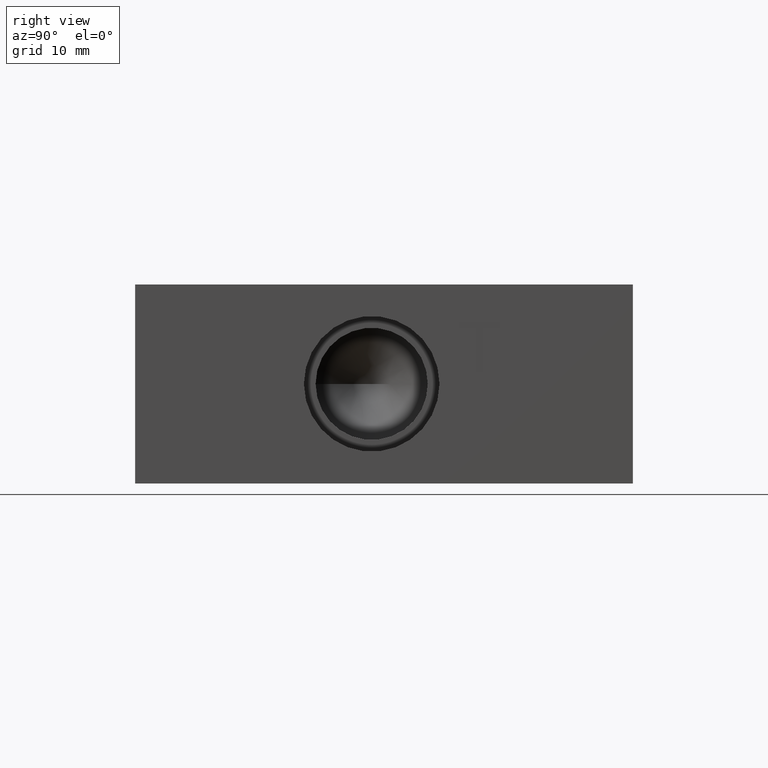
[diagram: clean part render]
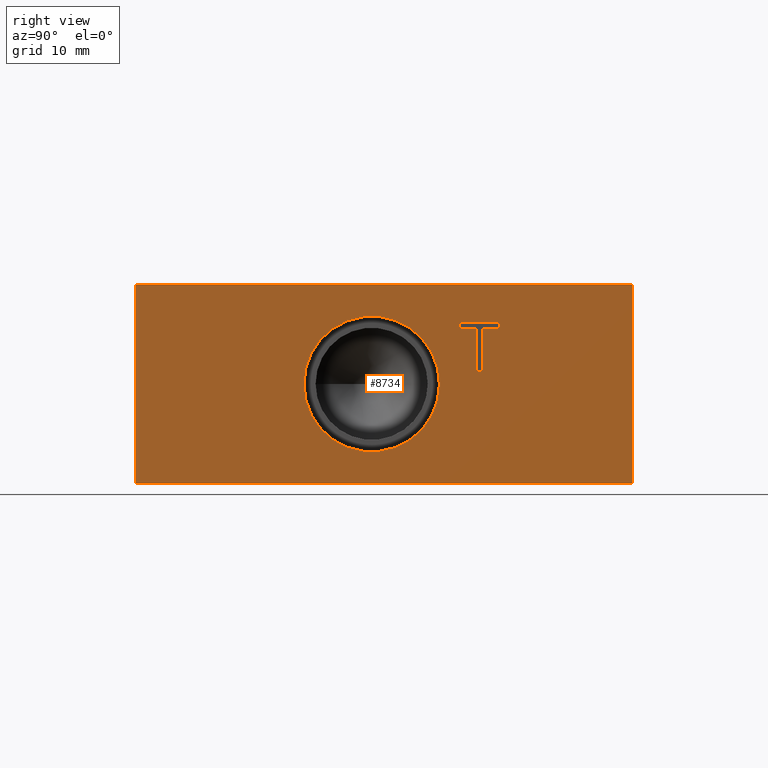
[diagram: same view with one face highlighted and labeled with its STEP entity id]
A machine part, right view. The second image highlights one B-rep face of the part: STEP entity #8734.
In plain terms, the highlighted planar face has unit normal (1, 0, 0).
Its self-contained STEP definition (entity closure, byte-faithful):
#80=CIRCLE('',#9045,8.6487);
#81=CIRCLE('',#9046,8.6487);
#186=FACE_BOUND('',#1396,.T.);
#187=FACE_BOUND('',#1397,.T.);
#465=PLANE('',#9142);
#907=FACE_OUTER_BOUND('',#1395,.T.);
#1395=EDGE_LOOP('',(#7730,#7731,#7732,#7733));
#1396=EDGE_LOOP('',(#7734,#7735,#7736,#7737,#7738,#7739,#7740,#7741));
#1397=EDGE_LOOP('',(#7742,#7743));
#1500=LINE('',#11686,#2340);
#2114=LINE('',#14319,#2954);
#2118=LINE('',#14327,#2958);
#2121=LINE('',#14333,#2961);
#2124=LINE('',#14339,#2964);
#2127=LINE('',#14345,#2967);
#2130=LINE('',#14351,#2970);
#2133=LINE('',#14357,#2973);
#2136=LINE('',#14362,#2976);
#2173=LINE('',#14437,#3013);
#2252=LINE('',#14999,#3092);
#2253=LINE('',#15000,#3093);
#2340=VECTOR('',#9270,10.);
#2954=VECTOR('',#10292,10.);
#2958=VECTOR('',#10298,10.);
#2961=VECTOR('',#10303,10.);
#2964=VECTOR('',#10308,10.);
#2967=VECTOR('',#10313,10.);
#2970=VECTOR('',#10318,10.);
#2973=VECTOR('',#10323,10.);
#2976=VECTOR('',#10328,10.);
#3013=VECTOR('',#10393,10.);
#3092=VECTOR('',#10768,10.);
#3093=VECTOR('',#10769,10.);
#3481=VERTEX_POINT('',#11683);
#3482=VERTEX_POINT('',#11685);
#4008=VERTEX_POINT('',#14317);
#4009=VERTEX_POINT('',#14318);
#4012=VERTEX_POINT('',#14326);
#4014=VERTEX_POINT('',#14332);
#4016=VERTEX_POINT('',#14338);
#4018=VERTEX_POINT('',#14344);
#4020=VERTEX_POINT('',#14350);
#4022=VERTEX_POINT('',#14356);
#4046=VERTEX_POINT('',#14433);
#4047=VERTEX_POINT('',#14435);
#4112=VERTEX_POINT('',#14800);
#4113=VERTEX_POINT('',#14801);
#4355=EDGE_CURVE('',#3481,#3482,#1500,.T.);
#5137=EDGE_CURVE('',#4008,#4009,#2114,.T.);
#5141=EDGE_CURVE('',#4012,#4008,#2118,.T.);
#5144=EDGE_CURVE('',#4014,#4012,#2121,.T.);
#5147=EDGE_CURVE('',#4016,#4014,#2124,.T.);
#5150=EDGE_CURVE('',#4018,#4016,#2127,.T.);
#5153=EDGE_CURVE('',#4020,#4018,#2130,.T.);
#5156=EDGE_CURVE('',#4022,#4020,#2133,.T.);
#5159=EDGE_CURVE('',#4009,#4022,#2136,.T.);
#5196=EDGE_CURVE('',#4046,#4047,#2173,.T.);
#5291=EDGE_CURVE('',#4112,#4113,#80,.T.);
#5292=EDGE_CURVE('',#4113,#4112,#81,.T.);
#5381=EDGE_CURVE('',#3481,#4046,#2252,.T.);
#5382=EDGE_CURVE('',#3482,#4047,#2253,.T.);
#7730=ORIENTED_EDGE('',*,*,#5381,.T.);
#7731=ORIENTED_EDGE('',*,*,#5196,.T.);
#7732=ORIENTED_EDGE('',*,*,#5382,.F.);
#7733=ORIENTED_EDGE('',*,*,#4355,.F.);
#7734=ORIENTED_EDGE('',*,*,#5137,.T.);
#7735=ORIENTED_EDGE('',*,*,#5159,.T.);
#7736=ORIENTED_EDGE('',*,*,#5156,.T.);
#7737=ORIENTED_EDGE('',*,*,#5153,.T.);
#7738=ORIENTED_EDGE('',*,*,#5150,.T.);
#7739=ORIENTED_EDGE('',*,*,#5147,.T.);
#7740=ORIENTED_EDGE('',*,*,#5144,.T.);
#7741=ORIENTED_EDGE('',*,*,#5141,.T.);
#7742=ORIENTED_EDGE('',*,*,#5291,.T.);
#7743=ORIENTED_EDGE('',*,*,#5292,.T.);
#8734=ADVANCED_FACE('',(#907,#186,#187),#465,.T.);
#9045=AXIS2_PLACEMENT_3D('',#14802,#10542,#10543);
#9046=AXIS2_PLACEMENT_3D('',#14803,#10544,#10545);
#9142=AXIS2_PLACEMENT_3D('',#14998,#10766,#10767);
#9270=DIRECTION('',(0.,0.,1.));
#10292=DIRECTION('',(0.,-1.,0.));
#10298=DIRECTION('',(0.,0.,-1.));
#10303=DIRECTION('',(0.,-1.,0.));
#10308=DIRECTION('',(0.,0.,-1.));
#10313=DIRECTION('',(0.,1.,0.));
#10318=DIRECTION('',(0.,0.,1.));
#10323=DIRECTION('',(0.,-1.,0.));
#10328=DIRECTION('',(0.,0.,1.));
#10393=DIRECTION('',(0.,0.,1.));
#10542=DIRECTION('center_axis',(-1.,0.,0.));
#10543=DIRECTION('ref_axis',(0.,1.,0.));
#10544=DIRECTION('center_axis',(-1.,0.,0.));
#10545=DIRECTION('ref_axis',(0.,1.,0.));
#10766=DIRECTION('center_axis',(1.,0.,0.));
#10767=DIRECTION('ref_axis',(0.,1.,0.));
#10768=DIRECTION('',(0.,1.,0.));
#10769=DIRECTION('',(0.,1.,0.));
#11683=CARTESIAN_POINT('',(63.5,0.,0.));
#11685=CARTESIAN_POINT('',(63.5,0.,25.4));
#11686=CARTESIAN_POINT('',(63.5,0.,0.));
#14317=CARTESIAN_POINT('',(63.5,44.320365271453,14.224));
#14318=CARTESIAN_POINT('',(63.5,43.4764430799135,14.224));
#14319=CARTESIAN_POINT('',(63.5,22.1601826357265,14.224));
#14326=CARTESIAN_POINT('',(63.5,44.320365271453,19.8227033194816));
#14327=CARTESIAN_POINT('',(63.5,44.320365271453,9.91135165974078));
#14332=CARTESIAN_POINT('',(63.5,46.4507542183881,19.8227033194816));
#14333=CARTESIAN_POINT('',(63.5,23.225377109194,19.8227033194816));
#14338=CARTESIAN_POINT('',(63.5,46.4507542183881,20.5739999046326));
#14339=CARTESIAN_POINT('',(63.5,46.4507542183881,10.2869999523163));
#14344=CARTESIAN_POINT('',(63.5,41.3460541329784,20.5739999046326));
#14345=CARTESIAN_POINT('',(63.5,20.6730270664892,20.5739999046326));
#14350=CARTESIAN_POINT('',(63.5,41.3460541329784,19.8227033194816));
#14351=CARTESIAN_POINT('',(63.5,41.3460541329784,9.91135165974078));
#14356=CARTESIAN_POINT('',(63.5,43.4764430799135,19.8227033194816));
#14357=CARTESIAN_POINT('',(63.5,21.7382215399567,19.8227033194816));
#14362=CARTESIAN_POINT('',(63.5,43.4764430799135,7.112));
#14433=CARTESIAN_POINT('',(63.5,63.5,0.));
#14435=CARTESIAN_POINT('',(63.5,63.5,25.4));
#14437=CARTESIAN_POINT('',(63.5,63.5,0.));
#14800=CARTESIAN_POINT('',(63.5,38.8239,12.7));
#14801=CARTESIAN_POINT('',(63.5,21.5265,12.7));
#14802=CARTESIAN_POINT('Origin',(63.5,30.1752,12.7));
#14803=CARTESIAN_POINT('Origin',(63.5,30.1752,12.7));
#14998=CARTESIAN_POINT('Origin',(63.5,0.,0.));
#14999=CARTESIAN_POINT('',(63.5,0.,0.));
#15000=CARTESIAN_POINT('',(63.5,0.,25.4));